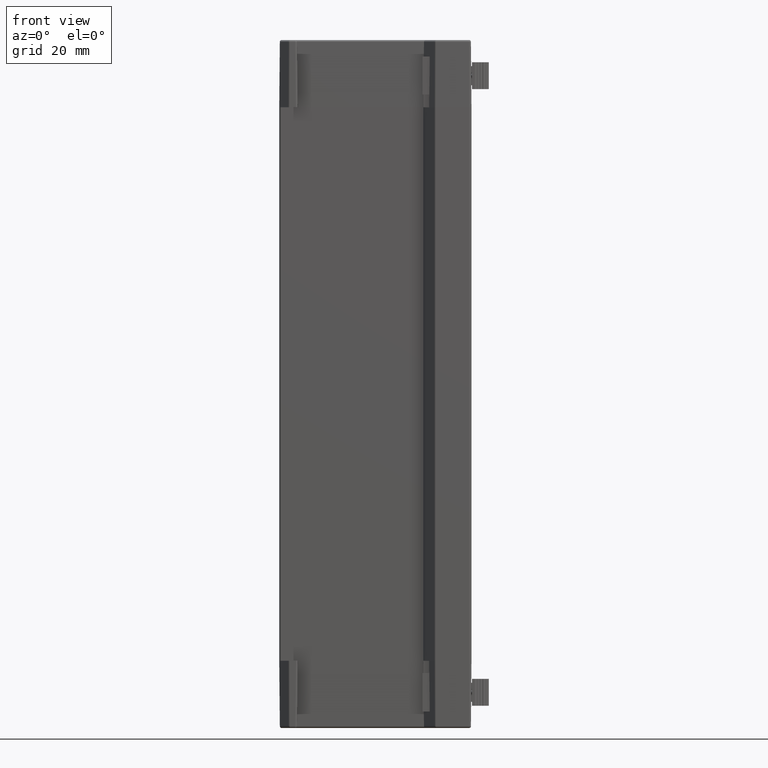
[diagram: clean part render]
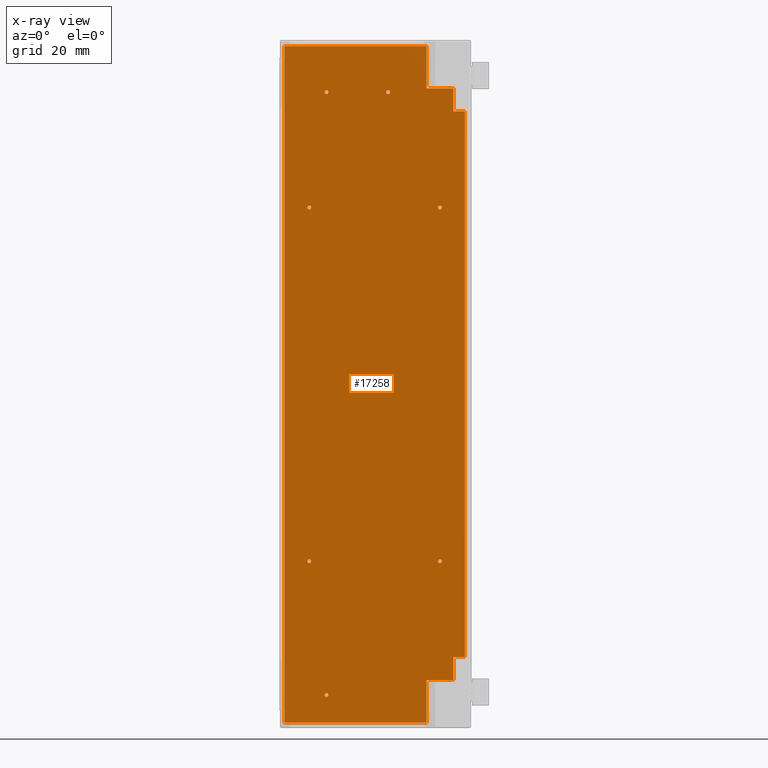
[diagram: x-ray — body ghosted, one internal face saturated and labeled with its STEP entity id]
A machine part, front view, then the same camera in x-ray: the body is ghosted and one INTERNAL B-rep face — a face not visible from any outside direction — is saturated and labeled: STEP entity #17258.
In plain terms, the highlighted planar face has unit normal (0, -1, -0).
Its self-contained STEP definition (entity closure, byte-faithful):
#2769 = EDGE_CURVE ( 'NONE', #8442, #8441, #14831, .T. ) ;
#2773 = EDGE_CURVE ( 'NONE', #8438, #8437, #14833, .T. ) ;
#2777 = EDGE_CURVE ( 'NONE', #8434, #8433, #14835, .T. ) ;
#2781 = EDGE_CURVE ( 'NONE', #8430, #8429, #14837, .T. ) ;
#2785 = EDGE_CURVE ( 'NONE', #8426, #8425, #14839, .T. ) ;
#2788 = EDGE_CURVE ( 'NONE', #8424, #8423, #14840, .T. ) ;
#2792 = EDGE_CURVE ( 'NONE', #8420, #8419, #14842, .T. ) ;
#2796 = EDGE_CURVE ( 'NONE', #8416, #8415, #49931, .T. ) ;
#2801 = EDGE_CURVE ( 'NONE', #8410, #8409, #49946, .T. ) ;
#2805 = EDGE_CURVE ( 'NONE', #8406, #8405, #49958, .T. ) ;
#2807 = EDGE_CURVE ( 'NONE', #8405, #8416, #49964, .T. ) ;
#2824 = EDGE_CURVE ( 'NONE', #8441, #8442, #14851, .T. ) ;
#2825 = EDGE_CURVE ( 'NONE', #8437, #8438, #14852, .T. ) ;
#2826 = EDGE_CURVE ( 'NONE', #8433, #8434, #14853, .T. ) ;
#2827 = EDGE_CURVE ( 'NONE', #8429, #8430, #14854, .T. ) ;
#2828 = EDGE_CURVE ( 'NONE', #8425, #8426, #14855, .T. ) ;
#2829 = EDGE_CURVE ( 'NONE', #8423, #8424, #14856, .T. ) ;
#2830 = EDGE_CURVE ( 'NONE', #8419, #8420, #14857, .T. ) ;
#2831 = EDGE_CURVE ( 'NONE', #8415, #8398, #50036, .T. ) ;
#2832 = EDGE_CURVE ( 'NONE', #8397, #8406, #50039, .T. ) ;
#2833 = EDGE_CURVE ( 'NONE', #8396, #8397, #50042, .T. ) ;
#2834 = EDGE_CURVE ( 'NONE', #8395, #8396, #50045, .T. ) ;
#2835 = EDGE_CURVE ( 'NONE', #8409, #8395, #50048, .T. ) ;
#2836 = EDGE_CURVE ( 'NONE', #8394, #8410, #50051, .T. ) ;
#2837 = EDGE_CURVE ( 'NONE', #8393, #8394, #50054, .T. ) ;
#2838 = EDGE_CURVE ( 'NONE', #8398, #8393, #50057, .T. ) ;
#3765 = ORIENTED_EDGE ( 'NONE', *, *, #2837, .F. ) ;
#3766 = ORIENTED_EDGE ( 'NONE', *, *, #2838, .F. ) ;
#3767 = ORIENTED_EDGE ( 'NONE', *, *, #2836, .F. ) ;
#3768 = ORIENTED_EDGE ( 'NONE', *, *, #2801, .F. ) ;
#3769 = ORIENTED_EDGE ( 'NONE', *, *, #2835, .F. ) ;
#3770 = ORIENTED_EDGE ( 'NONE', *, *, #2833, .F. ) ;
#3771 = ORIENTED_EDGE ( 'NONE', *, *, #2834, .F. ) ;
#3772 = ORIENTED_EDGE ( 'NONE', *, *, #2832, .F. ) ;
#3773 = ORIENTED_EDGE ( 'NONE', *, *, #2796, .F. ) ;
#3774 = ORIENTED_EDGE ( 'NONE', *, *, #2805, .F. ) ;
#3775 = ORIENTED_EDGE ( 'NONE', *, *, #2831, .F. ) ;
#3776 = ORIENTED_EDGE ( 'NONE', *, *, #2792, .F. ) ;
#3777 = ORIENTED_EDGE ( 'NONE', *, *, #2830, .F. ) ;
#3778 = ORIENTED_EDGE ( 'NONE', *, *, #2829, .F. ) ;
#3779 = ORIENTED_EDGE ( 'NONE', *, *, #2785, .F. ) ;
#3780 = ORIENTED_EDGE ( 'NONE', *, *, #2807, .F. ) ;
#3781 = ORIENTED_EDGE ( 'NONE', *, *, #2781, .F. ) ;
#3782 = ORIENTED_EDGE ( 'NONE', *, *, #2788, .F. ) ;
#3783 = ORIENTED_EDGE ( 'NONE', *, *, #2777, .F. ) ;
#3784 = ORIENTED_EDGE ( 'NONE', *, *, #2828, .F. ) ;
#3785 = ORIENTED_EDGE ( 'NONE', *, *, #2773, .F. ) ;
#3786 = ORIENTED_EDGE ( 'NONE', *, *, #2827, .F. ) ;
#3787 = ORIENTED_EDGE ( 'NONE', *, *, #2769, .F. ) ;
#3788 = ORIENTED_EDGE ( 'NONE', *, *, #2826, .F. ) ;
#3789 = ORIENTED_EDGE ( 'NONE', *, *, #2824, .F. ) ;
#3791 = ORIENTED_EDGE ( 'NONE', *, *, #2825, .F. ) ;
#5719 = AXIS2_PLACEMENT_3D ( 'NONE', #49861, #49862, #49863 ) ;
#5879 = AXIS2_PLACEMENT_3D ( 'NONE', #49900, #49907, #49908 ) ;
#6000 = AXIS2_PLACEMENT_3D ( 'NONE', #49849, #49850, #49851 ) ;
#6034 = AXIS2_PLACEMENT_3D ( 'NONE', #49885, #49886, #49887 ) ;
#6164 = AXIS2_PLACEMENT_3D ( 'NONE', #49912, #49919, #49920 ) ;
#6213 = VECTOR ( 'NONE', #49933, 1000.000000000000000 ) ;
#6273 = AXIS2_PLACEMENT_3D ( 'NONE', #49897, #49898, #49899 ) ;
#6340 = AXIS2_PLACEMENT_3D ( 'NONE', #49873, #49874, #49875 ) ;
#6432 = VECTOR ( 'NONE', #50059, 1000.000000000000000 ) ;
#6434 = VECTOR ( 'NONE', #50056, 1000.000000000000000 ) ;
#6438 = VECTOR ( 'NONE', #50053, 1000.000000000000000 ) ;
#6439 = VECTOR ( 'NONE', #50050, 1000.000000000000000 ) ;
#6442 = VECTOR ( 'NONE', #50047, 1000.000000000000000 ) ;
#6444 = VECTOR ( 'NONE', #50044, 1000.000000000000000 ) ;
#6446 = VECTOR ( 'NONE', #50041, 1000.000000000000000 ) ;
#6447 = VECTOR ( 'NONE', #50038, 1000.000000000000000 ) ;
#6453 = AXIS2_PLACEMENT_3D ( 'NONE', #50032, #50033, #50034 ) ;
#6454 = AXIS2_PLACEMENT_3D ( 'NONE', #50029, #50030, #50031 ) ;
#6456 = AXIS2_PLACEMENT_3D ( 'NONE', #50026, #50027, #50028 ) ;
#6458 = AXIS2_PLACEMENT_3D ( 'NONE', #50023, #50024, #50025 ) ;
#6460 = AXIS2_PLACEMENT_3D ( 'NONE', #49990, #50015, #50016 ) ;
#6468 = AXIS2_PLACEMENT_3D ( 'NONE', #50020, #50021, #50022 ) ;
#6469 = AXIS2_PLACEMENT_3D ( 'NONE', #50017, #50018, #50019 ) ;
#6476 = VECTOR ( 'NONE', #49966, 1000.000000000000000 ) ;
#6480 = VECTOR ( 'NONE', #49960, 1000.000000000000000 ) ;
#6486 = VECTOR ( 'NONE', #49948, 1000.000000000000000 ) ;
#8393 = VERTEX_POINT ( 'NONE', #20600 ) ;
#8394 = VERTEX_POINT ( 'NONE', #20602 ) ;
#8395 = VERTEX_POINT ( 'NONE', #20604 ) ;
#8396 = VERTEX_POINT ( 'NONE', #20606 ) ;
#8397 = VERTEX_POINT ( 'NONE', #20608 ) ;
#8398 = VERTEX_POINT ( 'NONE', #20610 ) ;
#8405 = VERTEX_POINT ( 'NONE', #20624 ) ;
#8406 = VERTEX_POINT ( 'NONE', #20626 ) ;
#8409 = VERTEX_POINT ( 'NONE', #20632 ) ;
#8410 = VERTEX_POINT ( 'NONE', #20634 ) ;
#8415 = VERTEX_POINT ( 'NONE', #20644 ) ;
#8416 = VERTEX_POINT ( 'NONE', #20646 ) ;
#8419 = VERTEX_POINT ( 'NONE', #20652 ) ;
#8420 = VERTEX_POINT ( 'NONE', #20654 ) ;
#8423 = VERTEX_POINT ( 'NONE', #20660 ) ;
#8424 = VERTEX_POINT ( 'NONE', #20662 ) ;
#8425 = VERTEX_POINT ( 'NONE', #20664 ) ;
#8426 = VERTEX_POINT ( 'NONE', #20666 ) ;
#8429 = VERTEX_POINT ( 'NONE', #20672 ) ;
#8430 = VERTEX_POINT ( 'NONE', #20674 ) ;
#8433 = VERTEX_POINT ( 'NONE', #20680 ) ;
#8434 = VERTEX_POINT ( 'NONE', #20682 ) ;
#8437 = VERTEX_POINT ( 'NONE', #20688 ) ;
#8438 = VERTEX_POINT ( 'NONE', #20690 ) ;
#8441 = VERTEX_POINT ( 'NONE', #20696 ) ;
#8442 = VERTEX_POINT ( 'NONE', #20698 ) ;
#14831 = CIRCLE ( 'NONE', #6000, 0.5000000000000282000 ) ;
#14833 = CIRCLE ( 'NONE', #5719, 0.5000000000000004400 ) ;
#14835 = CIRCLE ( 'NONE', #6340, 0.5000000000000004400 ) ;
#14837 = CIRCLE ( 'NONE', #6034, 0.5000000000000004400 ) ;
#14839 = CIRCLE ( 'NONE', #6273, 0.5000000000000004400 ) ;
#14840 = CIRCLE ( 'NONE', #5879, 0.5000000000000004400 ) ;
#14842 = CIRCLE ( 'NONE', #6164, 0.5000000000000004400 ) ;
#14851 = CIRCLE ( 'NONE', #6460, 0.5000000000000282000 ) ;
#14852 = CIRCLE ( 'NONE', #6469, 0.5000000000000004400 ) ;
#14853 = CIRCLE ( 'NONE', #6468, 0.5000000000000004400 ) ;
#14854 = CIRCLE ( 'NONE', #6458, 0.5000000000000004400 ) ;
#14855 = CIRCLE ( 'NONE', #6456, 0.5000000000000004400 ) ;
#14856 = CIRCLE ( 'NONE', #6454, 0.5000000000000004400 ) ;
#14857 = CIRCLE ( 'NONE', #6453, 0.5000000000000004400 ) ;
#17258 = ADVANCED_FACE ( 'NONE', ( #26034, #26033, #26044, #26046, #26048, #26049, #26050, #26051 ), #24272, .T. ) ;
#19266 = EDGE_LOOP ( 'NONE', ( #3775, #3773, #3780, #3774, #3772, #3770, #3771, #3769, #3768, #3767, #3765, #3766 ) ) ;
#19267 = EDGE_LOOP ( 'NONE', ( #3776, #3777 ) ) ;
#19268 = EDGE_LOOP ( 'NONE', ( #3782, #3778 ) ) ;
#19269 = EDGE_LOOP ( 'NONE', ( #3784, #3779 ) ) ;
#19270 = EDGE_LOOP ( 'NONE', ( #3786, #3781 ) ) ;
#19271 = EDGE_LOOP ( 'NONE', ( #3788, #3783 ) ) ;
#19272 = EDGE_LOOP ( 'NONE', ( #3791, #3785 ) ) ;
#19273 = EDGE_LOOP ( 'NONE', ( #3789, #3787 ) ) ;
#20600 = CARTESIAN_POINT ( 'NONE',  ( 11.00000000000000000, 3.000000000000000000, 0.0000000000000000000 ) ) ;
#20602 = CARTESIAN_POINT ( 'NONE',  ( 17.00000000000000000, 3.000000000000000000, 0.0000000000000000000 ) ) ;
#20604 = CARTESIAN_POINT ( 'NONE',  ( 158.9999999999999700, 3.000000000000000000, 0.0000000000000000000 ) ) ;
#20606 = CARTESIAN_POINT ( 'NONE',  ( 164.9999999999999700, 3.000000000000000000, 0.0000000000000000000 ) ) ;
#20608 = CARTESIAN_POINT ( 'NONE',  ( 164.9999999999999700, 10.00000000000000000, 0.0000000000000000000 ) ) ;
#20610 = CARTESIAN_POINT ( 'NONE',  ( 11.00000000000000000, 10.00000000000000000, 0.0000000000000000000 ) ) ;
#20624 = CARTESIAN_POINT ( 'NONE',  ( 176.0000000000000000, 47.00000000000000000, 0.0000000000000000000 ) ) ;
#20626 = CARTESIAN_POINT ( 'NONE',  ( 176.0000000000000000, 10.00000000000000000, 0.0000000000000000000 ) ) ;
#20632 = CARTESIAN_POINT ( 'NONE',  ( 158.9999999999999700, 0.0000000000000000000, 0.0000000000000000000 ) ) ;
#20634 = CARTESIAN_POINT ( 'NONE',  ( 17.00000000000000000, 0.0000000000000000000, 0.0000000000000000000 ) ) ;
#20644 = CARTESIAN_POINT ( 'NONE',  ( 0.0000000000000000000, 10.00000000000000000, 0.0000000000000000000 ) ) ;
#20646 = CARTESIAN_POINT ( 'NONE',  ( 0.0000000000000000000, 47.00000000000000000, 0.0000000000000000000 ) ) ;
#20652 = CARTESIAN_POINT ( 'NONE',  ( 11.50000000000000000, 36.00000000000000700, 0.0000000000000000000 ) ) ;
#20654 = CARTESIAN_POINT ( 'NONE',  ( 12.50000000000000000, 36.00000000000000700, 0.0000000000000000000 ) ) ;
#20660 = CARTESIAN_POINT ( 'NONE',  ( 11.50000000000000000, 20.00000000000000400, 0.0000000000000000000 ) ) ;
#20662 = CARTESIAN_POINT ( 'NONE',  ( 12.50000000000000000, 20.00000000000000400, 0.0000000000000000000 ) ) ;
#20664 = CARTESIAN_POINT ( 'NONE',  ( 41.50000000000000000, 6.499999999999992900, 0.0000000000000000000 ) ) ;
#20666 = CARTESIAN_POINT ( 'NONE',  ( 42.50000000000000000, 6.499999999999992900, 0.0000000000000000000 ) ) ;
#20672 = CARTESIAN_POINT ( 'NONE',  ( 41.50000000000000700, 40.49999999999999300, 0.0000000000000000000 ) ) ;
#20674 = CARTESIAN_POINT ( 'NONE',  ( 42.50000000000000700, 40.49999999999999300, 0.0000000000000000000 ) ) ;
#20680 = CARTESIAN_POINT ( 'NONE',  ( 133.4999999999999700, 40.49999999999999300, 0.0000000000000000000 ) ) ;
#20682 = CARTESIAN_POINT ( 'NONE',  ( 134.4999999999999700, 40.49999999999999300, 0.0000000000000000000 ) ) ;
#20688 = CARTESIAN_POINT ( 'NONE',  ( 133.4999999999999700, 6.499999999999992900, 0.0000000000000000000 ) ) ;
#20690 = CARTESIAN_POINT ( 'NONE',  ( 134.4999999999999700, 6.499999999999992900, 0.0000000000000000000 ) ) ;
#20696 = CARTESIAN_POINT ( 'NONE',  ( 168.2999999999999500, 36.00000000000000000, 0.0000000000000000000 ) ) ;
#20698 = CARTESIAN_POINT ( 'NONE',  ( 169.3000000000000100, 36.00000000000000000, 0.0000000000000000000 ) ) ;
#24272 = PLANE ( 'NONE',  #26047 ) ;
#24273 = CARTESIAN_POINT ( 'NONE',  ( 0.0000000000000000000, 0.0000000000000000000, 0.0000000000000000000 ) ) ;
#24274 = DIRECTION ( 'NONE',  ( 0.0000000000000000000, 0.0000000000000000000, -1.000000000000000000 ) ) ;
#24275 = DIRECTION ( 'NONE',  ( -1.000000000000000000, 0.0000000000000000000, -0.0000000000000000000 ) ) ;
#26033 = FACE_BOUND ( 'NONE', #19272, .T. ) ;
#26034 = FACE_BOUND ( 'NONE', #19273, .T. ) ;
#26044 = FACE_BOUND ( 'NONE', #19271, .T. ) ;
#26046 = FACE_BOUND ( 'NONE', #19270, .T. ) ;
#26047 = AXIS2_PLACEMENT_3D ( 'NONE', #24273, #24274, #24275 ) ;
#26048 = FACE_BOUND ( 'NONE', #19269, .T. ) ;
#26049 = FACE_BOUND ( 'NONE', #19268, .T. ) ;
#26050 = FACE_BOUND ( 'NONE', #19267, .T. ) ;
#26051 = FACE_OUTER_BOUND ( 'NONE', #19266, .T. ) ;
#49849 = CARTESIAN_POINT ( 'NONE',  ( 168.7999999999999800, 36.00000000000000000, 0.0000000000000000000 ) ) ;
#49850 = DIRECTION ( 'NONE',  ( 0.0000000000000000000, 0.0000000000000000000, -1.000000000000000000 ) ) ;
#49851 = DIRECTION ( 'NONE',  ( -1.000000000000000000, 0.0000000000000000000, 0.0000000000000000000 ) ) ;
#49861 = CARTESIAN_POINT ( 'NONE',  ( 133.9999999999999700, 6.499999999999992900, 0.0000000000000000000 ) ) ;
#49862 = DIRECTION ( 'NONE',  ( 0.0000000000000000000, 0.0000000000000000000, -1.000000000000000000 ) ) ;
#49863 = DIRECTION ( 'NONE',  ( -1.000000000000000000, 0.0000000000000000000, 0.0000000000000000000 ) ) ;
#49873 = CARTESIAN_POINT ( 'NONE',  ( 133.9999999999999700, 40.49999999999999300, 0.0000000000000000000 ) ) ;
#49874 = DIRECTION ( 'NONE',  ( 0.0000000000000000000, 0.0000000000000000000, -1.000000000000000000 ) ) ;
#49875 = DIRECTION ( 'NONE',  ( -1.000000000000000000, 0.0000000000000000000, 0.0000000000000000000 ) ) ;
#49885 = CARTESIAN_POINT ( 'NONE',  ( 42.00000000000000700, 40.49999999999999300, 0.0000000000000000000 ) ) ;
#49886 = DIRECTION ( 'NONE',  ( 0.0000000000000000000, 0.0000000000000000000, -1.000000000000000000 ) ) ;
#49887 = DIRECTION ( 'NONE',  ( -1.000000000000000000, 0.0000000000000000000, 0.0000000000000000000 ) ) ;
#49897 = CARTESIAN_POINT ( 'NONE',  ( 42.00000000000000000, 6.499999999999992900, 0.0000000000000000000 ) ) ;
#49898 = DIRECTION ( 'NONE',  ( 0.0000000000000000000, 0.0000000000000000000, -1.000000000000000000 ) ) ;
#49899 = DIRECTION ( 'NONE',  ( -1.000000000000000000, 0.0000000000000000000, 0.0000000000000000000 ) ) ;
#49900 = CARTESIAN_POINT ( 'NONE',  ( 12.00000000000000000, 20.00000000000000400, 0.0000000000000000000 ) ) ;
#49907 = DIRECTION ( 'NONE',  ( 0.0000000000000000000, 0.0000000000000000000, -1.000000000000000000 ) ) ;
#49908 = DIRECTION ( 'NONE',  ( -1.000000000000000000, 0.0000000000000000000, 0.0000000000000000000 ) ) ;
#49912 = CARTESIAN_POINT ( 'NONE',  ( 12.00000000000000000, 36.00000000000000700, 0.0000000000000000000 ) ) ;
#49919 = DIRECTION ( 'NONE',  ( 0.0000000000000000000, 0.0000000000000000000, -1.000000000000000000 ) ) ;
#49920 = DIRECTION ( 'NONE',  ( -1.000000000000000000, 0.0000000000000000000, 0.0000000000000000000 ) ) ;
#49931 = LINE ( 'NONE', #49932, #6213 ) ;
#49932 = CARTESIAN_POINT ( 'NONE',  ( 0.0000000000000000000, 0.0000000000000000000, 0.0000000000000000000 ) ) ;
#49933 = DIRECTION ( 'NONE',  ( -0.0000000000000000000, -1.000000000000000000, -0.0000000000000000000 ) ) ;
#49946 = LINE ( 'NONE', #49947, #6486 ) ;
#49947 = CARTESIAN_POINT ( 'NONE',  ( 0.0000000000000000000, 0.0000000000000000000, 0.0000000000000000000 ) ) ;
#49948 = DIRECTION ( 'NONE',  ( 1.000000000000000000, 0.0000000000000000000, 0.0000000000000000000 ) ) ;
#49958 = LINE ( 'NONE', #49959, #6480 ) ;
#49959 = CARTESIAN_POINT ( 'NONE',  ( 176.0000000000000000, 0.0000000000000000000, 0.0000000000000000000 ) ) ;
#49960 = DIRECTION ( 'NONE',  ( 0.0000000000000000000, 1.000000000000000000, 0.0000000000000000000 ) ) ;
#49964 = LINE ( 'NONE', #49965, #6476 ) ;
#49965 = CARTESIAN_POINT ( 'NONE',  ( 0.0000000000000000000, 47.00000000000000000, 0.0000000000000000000 ) ) ;
#49966 = DIRECTION ( 'NONE',  ( -1.000000000000000000, -0.0000000000000000000, -0.0000000000000000000 ) ) ;
#49990 = CARTESIAN_POINT ( 'NONE',  ( 168.7999999999999800, 36.00000000000000000, 0.0000000000000000000 ) ) ;
#50015 = DIRECTION ( 'NONE',  ( 0.0000000000000000000, 0.0000000000000000000, -1.000000000000000000 ) ) ;
#50016 = DIRECTION ( 'NONE',  ( -1.000000000000000000, 0.0000000000000000000, 0.0000000000000000000 ) ) ;
#50017 = CARTESIAN_POINT ( 'NONE',  ( 133.9999999999999700, 6.499999999999992900, 0.0000000000000000000 ) ) ;
#50018 = DIRECTION ( 'NONE',  ( 0.0000000000000000000, 0.0000000000000000000, -1.000000000000000000 ) ) ;
#50019 = DIRECTION ( 'NONE',  ( -1.000000000000000000, 0.0000000000000000000, 0.0000000000000000000 ) ) ;
#50020 = CARTESIAN_POINT ( 'NONE',  ( 133.9999999999999700, 40.49999999999999300, 0.0000000000000000000 ) ) ;
#50021 = DIRECTION ( 'NONE',  ( 0.0000000000000000000, 0.0000000000000000000, -1.000000000000000000 ) ) ;
#50022 = DIRECTION ( 'NONE',  ( -1.000000000000000000, 0.0000000000000000000, 0.0000000000000000000 ) ) ;
#50023 = CARTESIAN_POINT ( 'NONE',  ( 42.00000000000000700, 40.49999999999999300, 0.0000000000000000000 ) ) ;
#50024 = DIRECTION ( 'NONE',  ( 0.0000000000000000000, 0.0000000000000000000, -1.000000000000000000 ) ) ;
#50025 = DIRECTION ( 'NONE',  ( -1.000000000000000000, 0.0000000000000000000, 0.0000000000000000000 ) ) ;
#50026 = CARTESIAN_POINT ( 'NONE',  ( 42.00000000000000000, 6.499999999999992900, 0.0000000000000000000 ) ) ;
#50027 = DIRECTION ( 'NONE',  ( 0.0000000000000000000, 0.0000000000000000000, -1.000000000000000000 ) ) ;
#50028 = DIRECTION ( 'NONE',  ( -1.000000000000000000, 0.0000000000000000000, 0.0000000000000000000 ) ) ;
#50029 = CARTESIAN_POINT ( 'NONE',  ( 12.00000000000000000, 20.00000000000000400, 0.0000000000000000000 ) ) ;
#50030 = DIRECTION ( 'NONE',  ( 0.0000000000000000000, 0.0000000000000000000, -1.000000000000000000 ) ) ;
#50031 = DIRECTION ( 'NONE',  ( -1.000000000000000000, 0.0000000000000000000, 0.0000000000000000000 ) ) ;
#50032 = CARTESIAN_POINT ( 'NONE',  ( 12.00000000000000000, 36.00000000000000700, 0.0000000000000000000 ) ) ;
#50033 = DIRECTION ( 'NONE',  ( 0.0000000000000000000, 0.0000000000000000000, -1.000000000000000000 ) ) ;
#50034 = DIRECTION ( 'NONE',  ( -1.000000000000000000, 0.0000000000000000000, 0.0000000000000000000 ) ) ;
#50036 = LINE ( 'NONE', #50037, #6447 ) ;
#50037 = CARTESIAN_POINT ( 'NONE',  ( 0.0000000000000000000, 10.00000000000000000, 0.0000000000000000000 ) ) ;
#50038 = DIRECTION ( 'NONE',  ( 1.000000000000000000, 0.0000000000000000000, 0.0000000000000000000 ) ) ;
#50039 = LINE ( 'NONE', #50040, #6446 ) ;
#50040 = CARTESIAN_POINT ( 'NONE',  ( 0.0000000000000000000, 10.00000000000000000, 0.0000000000000000000 ) ) ;
#50041 = DIRECTION ( 'NONE',  ( 1.000000000000000000, -0.0000000000000000000, 0.0000000000000000000 ) ) ;
#50042 = LINE ( 'NONE', #50043, #6444 ) ;
#50043 = CARTESIAN_POINT ( 'NONE',  ( 164.9999999999999700, 0.0000000000000000000, -0.0000000000000000000 ) ) ;
#50044 = DIRECTION ( 'NONE',  ( 0.0000000000000000000, 1.000000000000000000, 0.0000000000000000000 ) ) ;
#50045 = LINE ( 'NONE', #50046, #6442 ) ;
#50046 = CARTESIAN_POINT ( 'NONE',  ( 0.0000000000000000000, 3.000000000000000000, 0.0000000000000000000 ) ) ;
#50047 = DIRECTION ( 'NONE',  ( 1.000000000000000000, -0.0000000000000000000, 0.0000000000000000000 ) ) ;
#50048 = LINE ( 'NONE', #50049, #6439 ) ;
#50049 = CARTESIAN_POINT ( 'NONE',  ( 158.9999999999999700, 0.0000000000000000000, -0.0000000000000000000 ) ) ;
#50050 = DIRECTION ( 'NONE',  ( 0.0000000000000000000, 1.000000000000000000, 0.0000000000000000000 ) ) ;
#50051 = LINE ( 'NONE', #50052, #6438 ) ;
#50052 = CARTESIAN_POINT ( 'NONE',  ( 17.00000000000000000, 0.0000000000000000000, 0.0000000000000000000 ) ) ;
#50053 = DIRECTION ( 'NONE',  ( 0.0000000000000000000, -1.000000000000000000, 0.0000000000000000000 ) ) ;
#50054 = LINE ( 'NONE', #50055, #6434 ) ;
#50055 = CARTESIAN_POINT ( 'NONE',  ( 0.0000000000000000000, 3.000000000000000000, 0.0000000000000000000 ) ) ;
#50056 = DIRECTION ( 'NONE',  ( 1.000000000000000000, 0.0000000000000000000, 0.0000000000000000000 ) ) ;
#50057 = LINE ( 'NONE', #50058, #6432 ) ;
#50058 = CARTESIAN_POINT ( 'NONE',  ( 11.00000000000000000, 0.0000000000000000000, 0.0000000000000000000 ) ) ;
#50059 = DIRECTION ( 'NONE',  ( 0.0000000000000000000, -1.000000000000000000, 0.0000000000000000000 ) ) ;